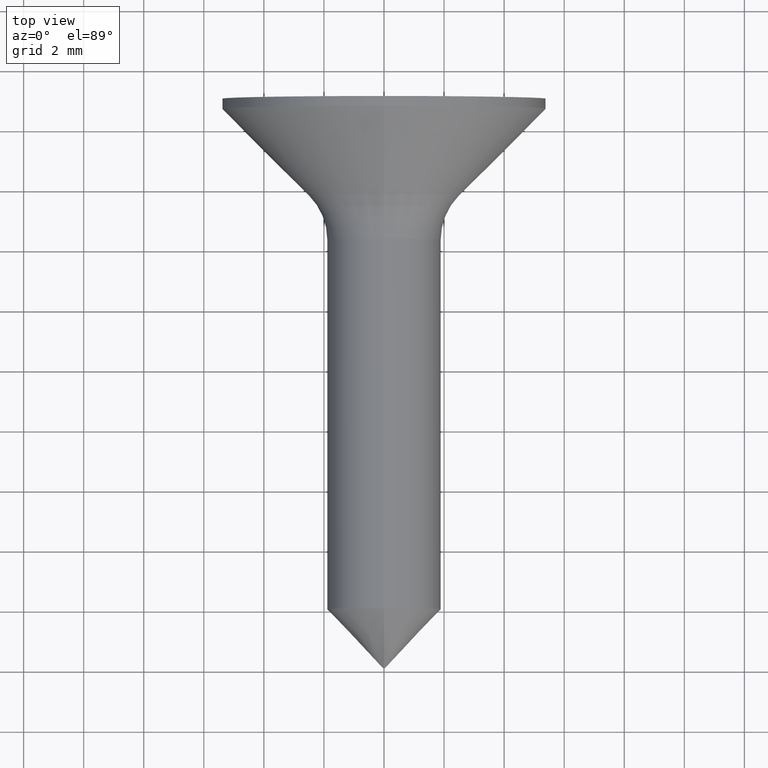
[diagram: clean part render]
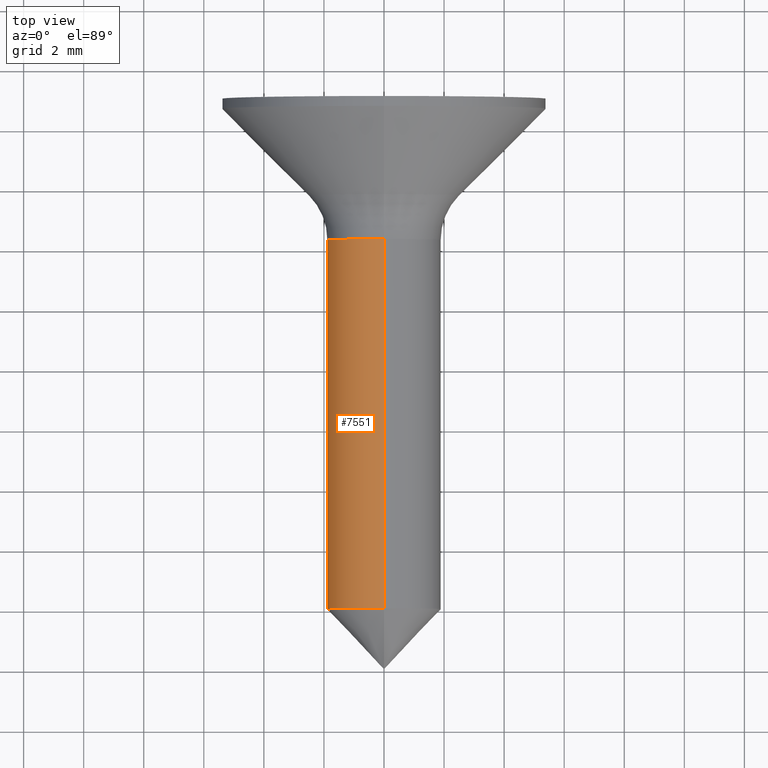
[diagram: same view with one face highlighted and labeled with its STEP entity id]
A machine part, top view. The second image highlights one B-rep face of the part: STEP entity #7551.
In plain terms, the highlighted cylindrical surface (partial cylindrical patch) has radius 1.9 mm, axis along (-0, -1, -0).
Its self-contained STEP definition (entity closure, byte-faithful):
#120 = CARTESIAN_POINT ( 'NONE',  ( 2.326828918379972844E-16, 2.000000000000000000, -1.900000000000001688 ) ) ;
#366 = DIRECTION ( 'NONE',  ( -0.000000000000000000, -1.000000000000000000, -0.000000000000000000 ) ) ;
#1034 = VERTEX_POINT ( 'NONE', #120 ) ;
#5284 = AXIS2_PLACEMENT_3D ( 'NONE', #9962, #11405, #7411 ) ;
#5418 = EDGE_LOOP ( 'NONE', ( #14867, #8366, #5975, #11662 ) ) ;
#5443 = CARTESIAN_POINT ( 'NONE',  ( 0.000000000000000000, 2.000000000000000000, 0.000000000000000000 ) ) ;
#5942 = VERTEX_POINT ( 'NONE', #15964 ) ;
#5975 = ORIENTED_EDGE ( 'NONE', *, *, #13966, .T. ) ;
#6264 = EDGE_CURVE ( 'NONE', #9995, #5942, #16013, .T. ) ;
#6293 = DIRECTION ( 'NONE',  ( -0.000000000000000000, -1.000000000000000000, -0.000000000000000000 ) ) ;
#6756 = CYLINDRICAL_SURFACE ( 'NONE', #5284, 1.900000000000002132 ) ;
#7226 = LINE ( 'NONE', #11709, #10951 ) ;
#7411 = DIRECTION ( 'NONE',  ( 0.000000000000000000, 0.000000000000000000, -1.000000000000000000 ) ) ;
#7551 = ADVANCED_FACE ( 'NONE', ( #11952 ), #6756, .T. ) ;
#8221 = CARTESIAN_POINT ( 'NONE',  ( 0.000000000000000000, 14.30015151901648096, 0.000000000000000000 ) ) ;
#8338 = DIRECTION ( 'NONE',  ( 0.000000000000000000, 0.000000000000000000, -1.000000000000000000 ) ) ;
#8366 = ORIENTED_EDGE ( 'NONE', *, *, #6264, .T. ) ;
#8473 = CIRCLE ( 'NONE', #12307, 1.900000000000001910 ) ;
#9936 = CARTESIAN_POINT ( 'NONE',  ( 2.326828918379973830E-16, 14.30015151901648096, 1.900000000000002576 ) ) ;
#9962 = CARTESIAN_POINT ( 'NONE',  ( 0.000000000000000000, 0.000000000000000000, 0.000000000000000000 ) ) ;
#9995 = VERTEX_POINT ( 'NONE', #9936 ) ;
#10951 = VECTOR ( 'NONE', #11765, 1000.000000000000000 ) ;
#11405 = DIRECTION ( 'NONE',  ( -0.000000000000000000, -1.000000000000000000, -0.000000000000000000 ) ) ;
#11662 = ORIENTED_EDGE ( 'NONE', *, *, #16693, .F. ) ;
#11709 = CARTESIAN_POINT ( 'NONE',  ( 0.000000000000000000, 0.000000000000000000, -1.900000000000002132 ) ) ;
#11765 = DIRECTION ( 'NONE',  ( -0.000000000000000000, -1.000000000000000000, -0.000000000000000000 ) ) ;
#11952 = FACE_OUTER_BOUND ( 'NONE', #5418, .T. ) ;
#12035 = DIRECTION ( 'NONE',  ( 0.000000000000000000, 0.000000000000000000, -1.000000000000000000 ) ) ;
#12262 = CARTESIAN_POINT ( 'NONE',  ( 0.000000000000000000, 2.000000000000000000, 1.900000000000001688 ) ) ;
#12307 = AXIS2_PLACEMENT_3D ( 'NONE', #5443, #15868, #12035 ) ;
#13227 = VERTEX_POINT ( 'NONE', #12262 ) ;
#13260 = VECTOR ( 'NONE', #6293, 1000.000000000000000 ) ;
#13890 = LINE ( 'NONE', #14330, #13260 ) ;
#13966 = EDGE_CURVE ( 'NONE', #5942, #1034, #7226, .T. ) ;
#14330 = CARTESIAN_POINT ( 'NONE',  ( 2.326828918379973337E-16, 0.000000000000000000, 1.900000000000002132 ) ) ;
#14867 = ORIENTED_EDGE ( 'NONE', *, *, #16113, .F. ) ;
#15722 = AXIS2_PLACEMENT_3D ( 'NONE', #8221, #366, #8338 ) ;
#15868 = DIRECTION ( 'NONE',  ( -0.000000000000000000, -1.000000000000000000, -0.000000000000000000 ) ) ;
#15964 = CARTESIAN_POINT ( 'NONE',  ( 0.000000000000000000, 14.30015151901648096, -1.900000000000002354 ) ) ;
#16013 = CIRCLE ( 'NONE', #15722, 1.900000000000002354 ) ;
#16113 = EDGE_CURVE ( 'NONE', #9995, #13227, #13890, .T. ) ;
#16693 = EDGE_CURVE ( 'NONE', #13227, #1034, #8473, .T. ) ;